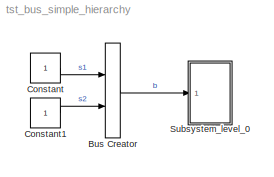
MODEL tst_bus_simple_hierarchy
KIND model
BLOCK [BusCreator] Bus Creator
  DisplayOption = bar
  Inputs = 2
  Ports = [2, 1]
  SID = 1
BLOCK [Constant] Constant
  SID = 3
BLOCK [Constant] Constant1
  SID = 5
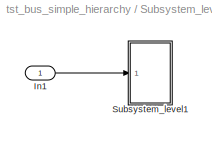
BLOCK [SubSystem] Subsystem_level_0
  FunctionWithSeparateData = off
  MaskHideContents = off
  MinAlgLoopOccurrences = off
  Opaque = off
  Ports = [1]
  PropExecContextOutsideSubsystem = off
  RTWSystemCode = Auto
  RequestExecContextInheritance = off
  SID = 21
BLOCK [Inport] Subsystem_level_0/In1
  IconDisplay = Port number
  SID = 22
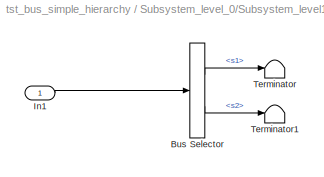
BLOCK [SubSystem] Subsystem_level_0/Subsystem_level1
  FunctionWithSeparateData = off
  MaskHideContents = off
  MinAlgLoopOccurrences = off
  Opaque = off
  Ports = [1]
  PropExecContextOutsideSubsystem = off
  RTWSystemCode = Auto
  RequestExecContextInheritance = off
  SID = 19
BLOCK [BusSelector] Subsystem_level_0/Subsystem_level1/Bus Selector
  OutputSignals = s1,s2
  Ports = [1, 2]
  SID = 2
BLOCK [Inport] Subsystem_level_0/Subsystem_level1/In1
  IconDisplay = Port number
  SID = 20
BLOCK [Terminator] Subsystem_level_0/Subsystem_level1/Terminator
  SID = 13
BLOCK [Terminator] Subsystem_level_0/Subsystem_level1/Terminator1
  SID = 14
LINE Bus Creator:1 -> Subsystem_level_0:1
LINE Constant1:1 -> Bus Creator:2
LINE Constant:1 -> Bus Creator:1
LINE Subsystem_level_0/In1:1 -> Subsystem_level_0/Subsystem_level1:1
LINE Subsystem_level_0/Subsystem_level1/Bus Selector:1 -> Subsystem_level_0/Subsystem_level1/Terminator:1
LINE Subsystem_level_0/Subsystem_level1/Bus Selector:2 -> Subsystem_level_0/Subsystem_level1/Terminator1:1
LINE Subsystem_level_0/Subsystem_level1/In1:1 -> Subsystem_level_0/Subsystem_level1/Bus Selector:1
